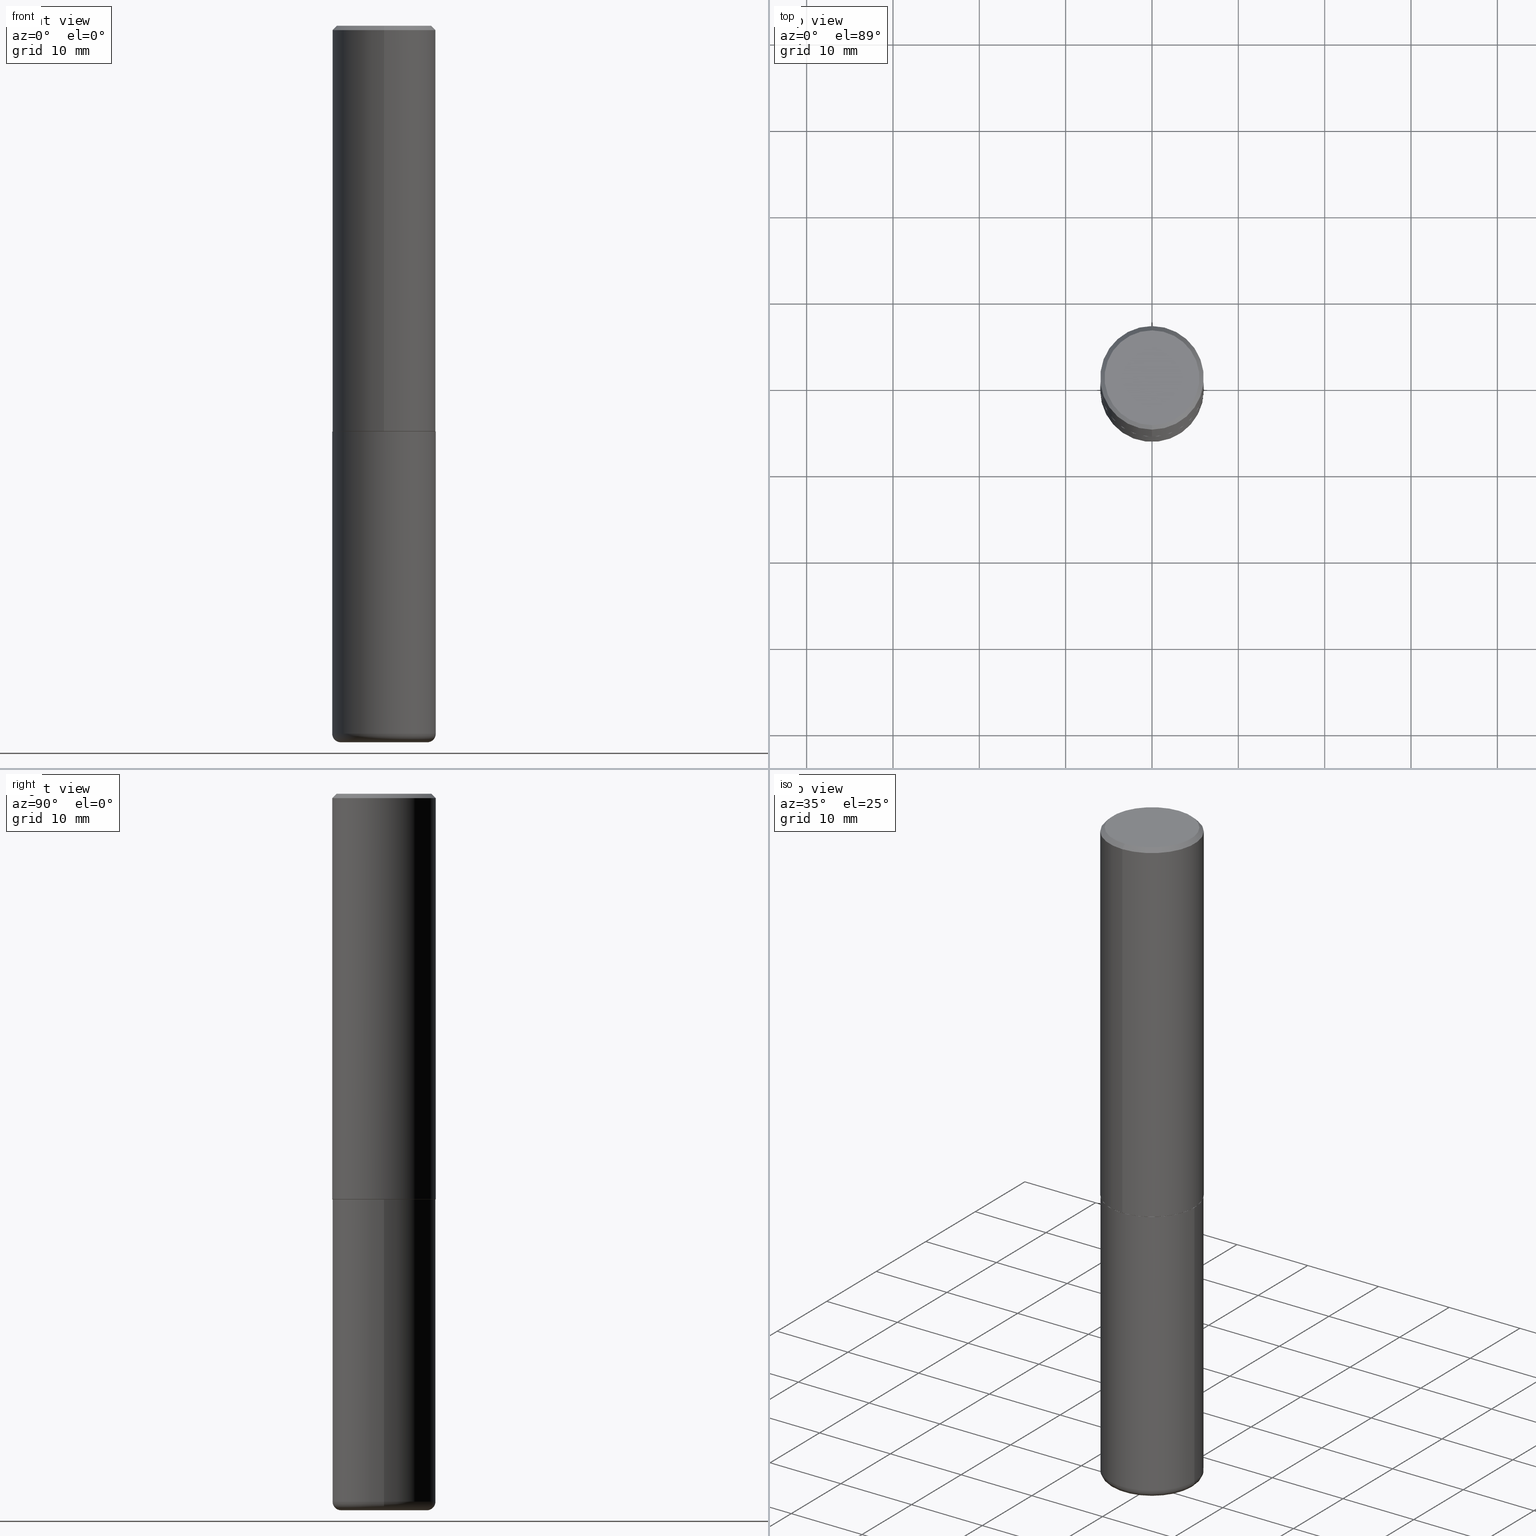
[diagram: canonical four-view strip — front | top / right | iso, engineering-drawing reading convention]
A machine part, canonical four-view strip (front | top / right | iso — engineering-drawing reading convention). The complete STEP part file that produces these views, byte-faithful:
ISO-10303-21;
HEADER;
FILE_DESCRIPTION (( 'STEP AP203' ),
    '1' );
FILE_NAME ('47543.STEP',
    '2024-03-06T09:22:07',
    ( '' ),
    ( '' ),
    'SwSTEP 2.0',
    'SolidWorks 2023',
    '' );
FILE_SCHEMA (( 'CONFIG_CONTROL_DESIGN' ));
ENDSEC;

DATA;
#1 = CIRCLE ( 'NONE', #232, 0.2362000000000002153 ) ;
#2 = PLANE ( 'NONE',  #307 ) ;
#3 = PRODUCT_DEFINITION_SHAPE ( 'NONE', 'NONE',  #387 ) ;
#4 = VECTOR ( 'NONE', #405, 39.37007874015748143 ) ;
#5 = LOCAL_TIME ( 4, 22, 7.000000000000000000, #179 ) ;
#6 = ADVANCED_FACE ( 'NONE', ( #366 ), #299, .T. ) ;
#7 =( LENGTH_UNIT ( ) NAMED_UNIT ( * ) SI_UNIT ( $, .METRE. ) );
#8 = FACE_OUTER_BOUND ( 'NONE', #40, .T. ) ;
#9 = EDGE_LOOP ( 'NONE', ( #396, #248, #272, #295 ) ) ;
#10 = CONICAL_SURFACE ( 'NONE', #94, 0.2351999999999999924, 0.7853981633973801113 ) ;
#11 = ORIENTED_EDGE ( 'NONE', *, *, #398, .T. ) ;
#12 = DIRECTION ( 'NONE',  ( 6.982962677686265922E-15, 1.000000000000000000, -3.491620077334691546E-15 ) ) ;
#13 = PERSON_AND_ORGANIZATION ( #46, #26 ) ;
#14 = CC_DESIGN_DATE_AND_TIME_ASSIGNMENT ( #406, #369, ( #224 ) ) ;
#15 = DIRECTION ( 'NONE',  ( -2.445468806185136597E-29, 3.491481338843145583E-15, 1.000000000000000000 ) ) ;
#16 = COORDINATED_UNIVERSAL_TIME_OFFSET ( 5, 0, .BEHIND. ) ;
#17 = DIRECTION ( 'NONE',  ( -1.000000000000000000, 7.105427357601014480E-15, 0.000000000000000000 ) ) ;
#18 = PLANE ( 'NONE',  #166 ) ;
#19 = LINE ( 'NONE', #145, #381 ) ;
#20 = AXIS2_PLACEMENT_3D ( 'NONE', #347, #221, #187 ) ;
#21 = CIRCLE ( 'NONE', #242, 0.2361999999999999933 ) ;
#22 = AXIS2_PLACEMENT_3D ( 'NONE', #125, #254, #352 ) ;
#23 = EDGE_CURVE ( 'NONE', #267, #38, #112, .T. ) ;
#24 = CARTESIAN_POINT ( 'NONE',  ( 1.579546157692632438E-15, 0.2161999999999996425, -4.261828037201549199E-16 ) ) ;
#25 = DIRECTION ( 'NONE',  ( 1.000000000000000000, -6.982962677686266711E-15, 4.876176775795936353E-29 ) ) ;
#26 = ORGANIZATION ( 'UNSPECIFIED', 'UNSPECIFIED', '' ) ;
#27 = PLANE ( 'NONE',  #77 ) ;
#28 = EDGE_CURVE ( 'NONE', #48, #158, #82, .T. ) ;
#29 = DIRECTION ( 'NONE',  ( -2.445371925614294233E-29, 3.491620077334691546E-15, 1.000000000000000000 ) ) ;
#30 = DIRECTION ( 'NONE',  ( -1.000000000000000000, 6.982962677686265922E-15, -4.876176775795935793E-29 ) ) ;
#31 = ORIENTED_EDGE ( 'NONE', *, *, #160, .F. ) ;
#32 = CONICAL_SURFACE ( 'NONE', #263, 0.2351999999999999924, 0.7853981633973801113 ) ;
#33 = CARTESIAN_POINT ( 'NONE',  ( -1.642392821791764560E-15, -0.2352000000000064595, -1.850399999999999823 ) ) ;
#34 = EDGE_CURVE ( 'NONE', #137, #158, #21, .T. ) ;
#35 = DIRECTION ( 'NONE',  ( 0.000000000000000000, 0.000000000000000000, 1.000000000000000000 ) ) ;
#36 = AXIS2_PLACEMENT_3D ( 'NONE', #350, #314, #159 ) ;
#37 = ADVANCED_FACE ( 'NONE', ( #8 ), #18, .F. ) ;
#38 = VERTEX_POINT ( 'NONE', #150 ) ;
#39 = CALENDAR_DATE ( 2024, 6, 3 ) ;
#40 = EDGE_LOOP ( 'NONE', ( #49, #302 ) ) ;
#41 = DIRECTION ( 'NONE',  ( -6.982962677686265922E-15, -1.000000000000000000, 3.487819265831411744E-15 ) ) ;
#42 = PERSON_AND_ORGANIZATION ( #46, #26 ) ;
#43 = CC_DESIGN_PERSON_AND_ORGANIZATION_ASSIGNMENT ( #151, #177, ( #123 ) ) ;
#44 = CONICAL_SURFACE ( 'NONE', #127, 0.2361999999999999933, 0.7853981633974479459 ) ;
#45 = DATE_AND_TIME ( #324, #372 ) ;
#46 = PERSON ( 'UNSPECIFIED', 'UNSPECIFIED', 'UNSPECIFIED', ('UNSPECIFIED'), ('UNSPECIFIED'), ('UNSPECIFIED') ) ;
#47 = LINE ( 'NONE', #304, #184 ) ;
#48 = VERTEX_POINT ( 'NONE', #274 ) ;
#49 = ORIENTED_EDGE ( 'NONE', *, *, #120, .T. ) ;
#50 = CARTESIAN_POINT ( 'NONE',  ( 7.894706947007477118E-29, -1.127154920618732880E-14, -3.228299999999999947 ) ) ;
#51 = MANIFOLD_SOLID_BREP ( 'Body-Move/Copy2[2]', #360 ) ;
#52 = LINE ( 'NONE', #407, #255 ) ;
#53 = AXIS2_PLACEMENT_3D ( 'NONE', #368, #15, #260 ) ;
#54 = ADVANCED_FACE ( 'NONE', ( #243 ), #142, .T. ) ;
#55 = CYLINDRICAL_SURFACE ( 'NONE', #117, 0.2361999999999999933 ) ;
#56 = DIRECTION ( 'NONE',  ( 1.000000000000000000, -6.982962677686269077E-15, 0.000000000000000000 ) ) ;
#57 = LINE ( 'NONE', #185, #321 ) ;
#58 = CARTESIAN_POINT ( 'NONE',  ( 7.894706947007477118E-29, -1.127154920618732880E-14, -3.228299999999999947 ) ) ;
#59 = ADVANCED_FACE ( 'NONE', ( #374 ), #359, .T. ) ;
#60 = ORIENTED_EDGE ( 'NONE', *, *, #288, .F. ) ;
#61 = DIRECTION ( 'NONE',  ( 1.000000000000000000, -6.982962677686270655E-15, 4.883557194083114583E-29 ) ) ;
#62 = DIRECTION ( 'NONE',  ( -2.445468806185136597E-29, 3.491481338843145583E-15, 1.000000000000000000 ) ) ;
#63 = APPROVAL_PERSON_ORGANIZATION ( #400, #186, #234 ) ;
#64 = CARTESIAN_POINT ( 'NONE',  ( 0.000000000000000000, 0.000000000000000000, 0.000000000000000000 ) ) ;
#65 = CC_DESIGN_SECURITY_CLASSIFICATION ( #224, ( #244 ) ) ;
#66 = ORIENTED_EDGE ( 'NONE', *, *, #204, .T. ) ;
#67 = DIRECTION ( 'NONE',  ( 2.438088387897960049E-29, -3.491481338843145188E-15, -1.000000000000000000 ) ) ;
#68 = CARTESIAN_POINT ( 'NONE',  ( 7.894706947007477118E-29, -1.127154920618732880E-14, -3.228299999999999947 ) ) ;
#69 = DIRECTION ( 'NONE',  ( -2.445371925614294233E-29, 3.491620077334691546E-15, 1.000000000000000000 ) ) ;
#70 = ORIENTED_EDGE ( 'NONE', *, *, #320, .F. ) ;
#71 = AXIS2_PLACEMENT_3D ( 'NONE', #180, #300, #17 ) ;
#72 = EDGE_CURVE ( 'NONE', #165, #269, #289, .T. ) ;
#73 = DIRECTION ( 'NONE',  ( -6.982962677686265133E-15, -1.000000000000000000, 3.469747663417773847E-15 ) ) ;
#74 = DIMENSIONAL_EXPONENTS ( 1.000000000000000000, 0.000000000000000000, 0.000000000000000000, 0.000000000000000000, 0.000000000000000000, 0.000000000000000000, 0.000000000000000000 ) ;
#75 = EDGE_LOOP ( 'NONE', ( #312, #11 ) ) ;
#76 = CIRCLE ( 'NONE', #227, 0.2361999999999999933 ) ;
#77 = AXIS2_PLACEMENT_3D ( 'NONE', #416, #67, #30 ) ;
#78 = ORIENTED_EDGE ( 'NONE', *, *, #364, .T. ) ;
#79 = APPLICATION_PROTOCOL_DEFINITION ( 'international standard', 'config_control_design', 1994, #353 ) ;
#80 = DIRECTION ( 'NONE',  ( -6.982962677686265133E-15, -1.000000000000000000, 3.484499991918703113E-15 ) ) ;
#81 = ORIENTED_EDGE ( 'NONE', *, *, #220, .F. ) ;
#82 = LINE ( 'NONE', #291, #174 ) ;
#83 = APPROVAL_ROLE ( '' ) ;
#84 = DIRECTION ( 'NONE',  ( -2.445468806185136597E-29, 3.491481338843145583E-15, 1.000000000000000000 ) ) ;
#85 = CARTESIAN_POINT ( 'NONE',  ( 7.991058417971171713E-29, -1.140911357093774644E-14, -3.267700000000000049 ) ) ;
#86 = APPROVAL_ROLE ( '' ) ;
#87 = CARTESIAN_POINT ( 'NONE',  ( -0.2361999999999999933, -7.187791195925986796E-15, -1.850400000000000267 ) ) ;
#88 = CIRCLE ( 'NONE', #176, 0.2161999999999996425 ) ;
#89 = DIRECTION ( 'NONE',  ( -2.445468806185136877E-29, 3.491481338843145188E-15, 1.000000000000000000 ) ) ;
#90 = CARTESIAN_POINT ( 'NONE',  ( -0.1968000000000000027, -9.802006365641922115E-15, -3.267700000000000049 ) ) ;
#91 = CARTESIAN_POINT ( 'NONE',  ( -1.551844647095918761E-15, -0.2161999999999996425, 1.083593717719362934E-15 ) ) ;
#92 = EDGE_CURVE ( 'NONE', #265, #182, #178, .T. ) ;
#93 = ORIENTED_EDGE ( 'NONE', *, *, #398, .F. ) ;
#94 = AXIS2_PLACEMENT_3D ( 'NONE', #413, #273, #80 ) ;
#95 = CC_DESIGN_PERSON_AND_ORGANIZATION_ASSIGNMENT ( #113, #395, ( #224 ) ) ;
#96 = APPROVAL_PERSON_ORGANIZATION ( #42, #197, #86 ) ;
#97 = DESIGN_CONTEXT ( 'detailed design', #353, 'design' ) ;
#98 = ADVANCED_FACE ( 'NONE', ( #215 ), #408, .T. ) ;
#99 = DIRECTION ( 'NONE',  ( -2.445371925614293953E-29, 3.491620077334691546E-15, 1.000000000000000000 ) ) ;
#100 = EDGE_CURVE ( 'NONE', #399, #267, #379, .T. ) ;
#101 = ORIENTED_EDGE ( 'NONE', *, *, #383, .F. ) ;
#102 = DIRECTION ( 'NONE',  ( -2.445371925614294233E-29, 3.491620077334691546E-15, 1.000000000000000000 ) ) ;
#103 = LENGTH_MEASURE_WITH_UNIT ( LENGTH_MEASURE( 0.02539999999999999897 ), #7 );
#104 = ADVANCED_FACE ( 'NONE', ( #183 ), #152, .T. ) ;
#105 = AXIS2_PLACEMENT_3D ( 'NONE', #412, #121, #344 ) ;
#106 = CARTESIAN_POINT ( 'NONE',  ( 4.524916211156691287E-29, -6.460893791100115503E-15, -1.850400000000000489 ) ) ;
#107 = CIRCLE ( 'NONE', #71, 0.03940000000000005997 ) ;
#108 = PERSON_AND_ORGANIZATION ( #46, #26 ) ;
#109 = ORIENTED_EDGE ( 'NONE', *, *, #320, .T. ) ;
#110 = CALENDAR_DATE ( 2024, 6, 3 ) ;
#111 = DIRECTION ( 'NONE',  ( -2.445371925614294233E-29, 3.491620077334691546E-15, 1.000000000000000000 ) ) ;
#112 = LINE ( 'NONE', #236, #4 ) ;
#113 = PERSON_AND_ORGANIZATION ( #46, #26 ) ;
#114 = ORIENTED_EDGE ( 'NONE', *, *, #28, .T. ) ;
#115 = CARTESIAN_POINT ( 'NONE',  ( 4.890743851228601113E-31, -6.983240154669400497E-17, -0.02000000000000005246 ) ) ;
#116 = CARTESIAN_POINT ( 'NONE',  ( 0.2362000000000000210, -1.292092499065682375E-14, -3.228299999999999947 ) ) ;
#117 = AXIS2_PLACEMENT_3D ( 'NONE', #64, #156, #25 ) ;
#118 = DIRECTION ( 'NONE',  ( -6.982962677686265922E-15, -1.000000000000000000, 3.491620077334691941E-15 ) ) ;
#119 = APPROVAL_DATE_TIME ( #45, #414 ) ;
#120 = EDGE_CURVE ( 'NONE', #283, #222, #285, .T. ) ;
#121 = DIRECTION ( 'NONE',  ( -2.445371925614294233E-29, 3.491620077334691546E-15, 1.000000000000000000 ) ) ;
#122 = ADVANCED_FACE ( 'NONE', ( #218 ), #55, .T. ) ;
#123 = PRODUCT ( '47543', '47543', '', ( #308 ) ) ;
#124 = DIRECTION ( 'NONE',  ( -2.445468806185136597E-29, 3.491481338843145583E-15, 1.000000000000000000 ) ) ;
#125 = CARTESIAN_POINT ( 'NONE',  ( 4.522470839231075964E-29, -6.457402171022779437E-15, -1.849400000000000155 ) ) ;
#126 = AXIS2_PLACEMENT_3D ( 'NONE', #50, #279, #61 ) ;
#127 = AXIS2_PLACEMENT_3D ( 'NONE', #318, #357, #287 ) ;
#128 = DIRECTION ( 'NONE',  ( 1.000000000000000000, -6.982962677686265133E-15, 0.000000000000000000 ) ) ;
#129 = ORIENTED_EDGE ( 'NONE', *, *, #23, .F. ) ;
#130 = CARTESIAN_POINT ( 'NONE',  ( 4.524916211156691287E-29, -6.460893791100115503E-15, -1.850400000000000489 ) ) ;
#131 = EDGE_CURVE ( 'NONE', #283, #137, #57, .T. ) ;
#132 = ORIENTED_EDGE ( 'NONE', *, *, #380, .F. ) ;
#133 = AXIS2_PLACEMENT_3D ( 'NONE', #245, #277, #376 ) ;
#134 = CARTESIAN_POINT ( 'NONE',  ( 0.000000000000000000, 0.000000000000000000, 0.000000000000000000 ) ) ;
#135 = DIRECTION ( 'NONE',  ( 2.445371925614293953E-29, -3.491620077334691546E-15, -1.000000000000000000 ) ) ;
#136 = VERTEX_POINT ( 'NONE', #251 ) ;
#137 = VERTEX_POINT ( 'NONE', #223 ) ;
#138 = CIRCLE ( 'NONE', #250, 0.1968000000000000027 ) ;
#139 = PERSON_AND_ORGANIZATION ( #46, #26 ) ;
#140 = ADVANCED_FACE ( 'NONE', ( #310 ), #32, .T. ) ;
#141 = ORIENTED_EDGE ( 'NONE', *, *, #418, .F. ) ;
#142 = CYLINDRICAL_SURFACE ( 'NONE', #262, 0.2362000000000001043 ) ;
#143 = DATE_AND_TIME ( #392, #167 ) ;
#144 = ORIENTED_EDGE ( 'NONE', *, *, #72, .F. ) ;
#145 = CARTESIAN_POINT ( 'NONE',  ( 0.2361999999999999933, -1.649375784469496131E-15, 1.151752954443000088E-29 ) ) ;
#146 = CARTESIAN_POINT ( 'NONE',  ( -0.2361999999999999933, 1.678301941865356591E-15, -1.161852468318208757E-29 ) ) ;
#147 = ORIENTED_EDGE ( 'NONE', *, *, #131, .T. ) ;
#148 = CARTESIAN_POINT ( 'NONE',  ( 1.674749228186601644E-15, 0.2351999999999935531, -1.850400000000001377 ) ) ;
#149 = ORIENTED_EDGE ( 'NONE', *, *, #220, .T. ) ;
#150 = CARTESIAN_POINT ( 'NONE',  ( 1.678301941865380454E-15, 0.2361999999999937760, -1.849400000000001043 ) ) ;
#151 = PERSON_AND_ORGANIZATION ( #46, #26 ) ;
#152 = TOROIDAL_SURFACE ( 'NONE', #20, 0.1968000000000000027, 0.03940000000000005997 ) ;
#153 = CARTESIAN_POINT ( 'NONE',  ( 7.991058417971171713E-29, -1.140911357093774644E-14, -3.267700000000000049 ) ) ;
#154 = CARTESIAN_POINT ( 'NONE',  ( -1.620449627073635079E-15, -0.2362000000000000766, -0.01999999999999922673 ) ) ;
#155 = ORIENTED_EDGE ( 'NONE', *, *, #418, .T. ) ;
#156 = DIRECTION ( 'NONE',  ( -2.445468806185136597E-29, 3.491481338843145583E-15, 1.000000000000000000 ) ) ;
#157 = ADVANCED_FACE ( 'NONE', ( #284 ), #10, .T. ) ;
#158 = VERTEX_POINT ( 'NONE', #154 ) ;
#159 = DIRECTION ( 'NONE',  ( 6.982962677686265922E-15, 1.000000000000000000, -3.487819265831411744E-15 ) ) ;
#160 = EDGE_CURVE ( 'NONE', #267, #399, #311, .T. ) ;
#161 = AXIS2_PLACEMENT_3D ( 'NONE', #343, #62, #56 ) ;
#162 = FACE_OUTER_BOUND ( 'NONE', #365, .T. ) ;
#163 = EDGE_CURVE ( 'NONE', #399, #48, #397, .T. ) ;
#164 = CC_DESIGN_PERSON_AND_ORGANIZATION_ASSIGNMENT ( #340, #261, ( #387 ) ) ;
#165 = VERTEX_POINT ( 'NONE', #371 ) ;
#166 = AXIS2_PLACEMENT_3D ( 'NONE', #175, #135, #12 ) ;
#167 = LOCAL_TIME ( 4, 22, 7.000000000000000000, #171 ) ;
#168 = ORIENTED_EDGE ( 'NONE', *, *, #163, .T. ) ;
#169 = VERTEX_POINT ( 'NONE', #116 ) ;
#170 = EDGE_LOOP ( 'NONE', ( #391, #403, #214, #402 ) ) ;
#171 = COORDINATED_UNIVERSAL_TIME_OFFSET ( 5, 0, .BEHIND. ) ;
#172 = DIRECTION ( 'NONE',  ( -2.445371925614294233E-29, 3.491620077334691546E-15, 1.000000000000000000 ) ) ;
#173 = ORIENTED_EDGE ( 'NONE', *, *, #196, .T. ) ;
#174 = VECTOR ( 'NONE', #326, 39.37007874015748143 ) ;
#175 = CARTESIAN_POINT ( 'NONE',  ( 1.509716530915768154E-15, 0.2161999999999996425, -5.905355322199570835E-16 ) ) ;
#176 = AXIS2_PLACEMENT_3D ( 'NONE', #386, #69, #202 ) ;
#177 = PERSON_AND_ORGANIZATION_ROLE ( 'design_owner' ) ;
#178 = LINE ( 'NONE', #146, #305 ) ;
#179 = COORDINATED_UNIVERSAL_TIME_OFFSET ( 5, 0, .BEHIND. ) ;
#180 = CARTESIAN_POINT ( 'NONE',  ( -0.1968000000000000027, -9.873201102211451027E-15, -3.228299999999999947 ) ) ;
#181 = EDGE_CURVE ( 'NONE', #38, #137, #47, .T. ) ;
#182 = VERTEX_POINT ( 'NONE', #87 ) ;
#183 = FACE_OUTER_BOUND ( 'NONE', #301, .T. ) ;
#184 = VECTOR ( 'NONE', #111, 39.37007874015748143 ) ;
#185 = CARTESIAN_POINT ( 'NONE',  ( 1.649375784469496525E-15, 0.2361999999999999378, -0.02000000000000087472 ) ) ;
#186 = APPROVAL ( #375, 'UNSPECIFIED' ) ;
#187 = DIRECTION ( 'NONE',  ( 1.000000000000000000, -6.982962677686270655E-15, 4.883557194083114583E-29 ) ) ;
#188 = EDGE_LOOP ( 'NONE', ( #144, #322 ) ) ;
#189 = AXIS2_PLACEMENT_3D ( 'NONE', #205, #323, #336 ) ;
#190 = CC_DESIGN_APPROVAL ( #414, ( #387 ) ) ;
#191 = CC_DESIGN_APPROVAL ( #197, ( #224 ) ) ;
#192 = DIRECTION ( 'NONE',  ( 4.937700262164545676E-15, 0.7071067811865447972, -0.7071067811865502373 ) ) ;
#193 = APPLICATION_CONTEXT ( 'configuration controlled 3d designs of mechanical parts and assemblies' ) ;
#194 = CIRCLE ( 'NONE', #22, 0.2362000000000002153 ) ;
#195 = DIRECTION ( 'NONE',  ( 1.000000000000000000, -6.982962677686265133E-15, 0.000000000000000000 ) ) ;
#196 = EDGE_CURVE ( 'NONE', #222, #158, #52, .T. ) ;
#197 = APPROVAL ( #237, 'UNSPECIFIED' ) ;
#198 =( CONVERSION_BASED_UNIT ( 'INCH', #103 ) LENGTH_UNIT ( ) NAMED_UNIT ( #74 ) );
#199 = AXIS2_PLACEMENT_3D ( 'NONE', #106, #346, #282 ) ;
#200 = CIRCLE ( 'NONE', #133, 0.03940000000000005997 ) ;
#201 = EDGE_LOOP ( 'NONE', ( #129, #208, #168, #141 ) ) ;
#202 = DIRECTION ( 'NONE',  ( -6.982962677686265922E-15, -1.000000000000000000, 3.491620077334691152E-15 ) ) ;
#203 = ORIENTED_EDGE ( 'NONE', *, *, #181, .F. ) ;
#204 = EDGE_CURVE ( 'NONE', #269, #165, #138, .T. ) ;
#205 = CARTESIAN_POINT ( 'NONE',  ( 0.000000000000000000, 0.000000000000000000, 0.000000000000000000 ) ) ;
#206 = COORDINATED_UNIVERSAL_TIME_OFFSET ( 5, 0, .BEHIND. ) ;
#207 = DIRECTION ( 'NONE',  ( -6.982962677686265133E-15, -1.000000000000000000, 3.484499991918703113E-15 ) ) ;
#208 = ORIENTED_EDGE ( 'NONE', *, *, #160, .T. ) ;
#209 = SHAPE_DEFINITION_REPRESENTATION ( #3, #229 ) ;
#210 = DIRECTION ( 'NONE',  ( 1.000000000000000000, -6.982962677686271444E-15, 0.000000000000000000 ) ) ;
#211 = DIRECTION ( 'NONE',  ( -2.445468806185136597E-29, 3.491481338843145583E-15, 1.000000000000000000 ) ) ;
#212 = CALENDAR_DATE ( 2024, 6, 3 ) ;
#213 = DIRECTION ( 'NONE',  ( -2.445468806185136877E-29, 3.491481338843145188E-15, 1.000000000000000000 ) ) ;
#214 = ORIENTED_EDGE ( 'NONE', *, *, #356, .F. ) ;
#215 = FACE_OUTER_BOUND ( 'NONE', #170, .T. ) ;
#216 = FACE_OUTER_BOUND ( 'NONE', #188, .T. ) ;
#217 = CARTESIAN_POINT ( 'NONE',  ( 7.991058417971171713E-29, -1.140911357093774644E-14, -3.267700000000000049 ) ) ;
#218 = FACE_OUTER_BOUND ( 'NONE', #334, .T. ) ;
#219 = AXIS2_PLACEMENT_3D ( 'NONE', #58, #124, #128 ) ;
#220 = EDGE_CURVE ( 'NONE', #169, #136, #19, .T. ) ;
#221 = DIRECTION ( 'NONE',  ( -2.445468806185136597E-29, 3.491481338843145583E-15, 1.000000000000000000 ) ) ;
#222 = VERTEX_POINT ( 'NONE', #91 ) ;
#223 = CARTESIAN_POINT ( 'NONE',  ( 1.649375784469496525E-15, 0.2361999999999999378, -0.02000000000000087472 ) ) ;
#224 = SECURITY_CLASSIFICATION ( '', '', #266 ) ;
#225 = CARTESIAN_POINT ( 'NONE',  ( 4.890743851228601113E-31, -6.983240154669400497E-17, -0.02000000000000005246 ) ) ;
#226 = DIRECTION ( 'NONE',  ( 1.000000000000000000, -6.982962677686269077E-15, 0.000000000000000000 ) ) ;
#227 = AXIS2_PLACEMENT_3D ( 'NONE', #316, #390, #226 ) ;
#228 =( NAMED_UNIT ( * ) PLANE_ANGLE_UNIT ( ) SI_UNIT ( $, .RADIAN. ) );
#229 = ADVANCED_BREP_SHAPE_REPRESENTATION ( '47543', ( #330, #51, #388 ), #286 ) ;
#230 = EDGE_CURVE ( 'NONE', #269, #265, #107, .T. ) ;
#231 = CLOSED_SHELL ( 'NONE', ( #122, #98, #351, #59, #104, #276 ) ) ;
#232 = AXIS2_PLACEMENT_3D ( 'NONE', #256, #102, #73 ) ;
#233 = DIRECTION ( 'NONE',  ( -2.445371925614294233E-29, 3.491620077334691546E-15, 1.000000000000000000 ) ) ;
#234 = APPROVAL_ROLE ( '' ) ;
#235 = DIRECTION ( 'NONE',  ( -6.982962677686265133E-15, -1.000000000000000000, 3.484499991918703113E-15 ) ) ;
#236 = CARTESIAN_POINT ( 'NONE',  ( 1.671196514507800548E-15, 0.2351999999999935531, -1.850400000000001377 ) ) ;
#237 = APPROVAL_STATUS ( 'not_yet_approved' ) ;
#238 = DIRECTION ( 'NONE',  ( -4.851104656540961908E-15, -0.7071067811865496822, -0.7071067811865453523 ) ) ;
#239 = CC_DESIGN_PERSON_AND_ORGANIZATION_ASSIGNMENT ( #108, #294, ( #244 ) ) ;
#240 = DIRECTION ( 'NONE',  ( -2.445371925614294233E-29, 3.491620077334691546E-15, 1.000000000000000000 ) ) ;
#241 = APPROVAL_STATUS ( 'not_yet_approved' ) ;
#242 = AXIS2_PLACEMENT_3D ( 'NONE', #115, #233, #41 ) ;
#243 = FACE_OUTER_BOUND ( 'NONE', #293, .T. ) ;
#244 = PRODUCT_DEFINITION_FORMATION_WITH_SPECIFIED_SOURCE ( 'ANY', '', #123, .NOT_KNOWN. ) ;
#245 = CARTESIAN_POINT ( 'NONE',  ( 0.1968000000000000027, -1.264579626115598374E-14, -3.228299999999999947 ) ) ;
#246 = ORIENTED_EDGE ( 'NONE', *, *, #92, .F. ) ;
#247 = COORDINATED_UNIVERSAL_TIME_OFFSET ( 5, 0, .BEHIND. ) ;
#248 = ORIENTED_EDGE ( 'NONE', *, *, #23, .T. ) ;
#249 = ORIENTED_EDGE ( 'NONE', *, *, #100, .F. ) ;
#250 = AXIS2_PLACEMENT_3D ( 'NONE', #153, #84, #210 ) ;
#251 = CARTESIAN_POINT ( 'NONE',  ( 0.2361999999999999933, -8.110012853864854101E-15, -1.850400000000000267 ) ) ;
#252 = FACE_OUTER_BOUND ( 'NONE', #292, .T. ) ;
#253 = EDGE_LOOP ( 'NONE', ( #246, #298, #149, #93 ) ) ;
#254 = DIRECTION ( 'NONE',  ( -2.445371925614294233E-29, 3.491620077334691546E-15, 1.000000000000000000 ) ) ;
#255 = VECTOR ( 'NONE', #238, 39.37007874015748143 ) ;
#256 = CARTESIAN_POINT ( 'NONE',  ( 4.522470839231075964E-29, -6.457402171022779437E-15, -1.849400000000000155 ) ) ;
#257 = FACE_OUTER_BOUND ( 'NONE', #370, .T. ) ;
#258 = APPROVAL_PERSON_ORGANIZATION ( #139, #414, #83 ) ;
#259 = DIRECTION ( 'NONE',  ( -6.982962677686265922E-15, -1.000000000000000000, 3.491620077334691546E-15 ) ) ;
#260 = DIRECTION ( 'NONE',  ( 1.000000000000000000, -6.982962677686266711E-15, 4.876176775795936353E-29 ) ) ;
#261 = PERSON_AND_ORGANIZATION_ROLE ( 'creator' ) ;
#262 = AXIS2_PLACEMENT_3D ( 'NONE', #410, #240, #118 ) ;
#263 = AXIS2_PLACEMENT_3D ( 'NONE', #313, #29, #235 ) ;
#264 = ORIENTED_EDGE ( 'NONE', *, *, #230, .F. ) ;
#265 = VERTEX_POINT ( 'NONE', #338 ) ;
#266 = SECURITY_CLASSIFICATION_LEVEL ( 'unclassified' ) ;
#267 = VERTEX_POINT ( 'NONE', #148 ) ;
#268 = EDGE_CURVE ( 'NONE', #165, #169, #200, .T. ) ;
#269 = VERTEX_POINT ( 'NONE', #90 ) ;
#270 = PERSON_AND_ORGANIZATION_ROLE ( 'creator' ) ;
#271 = DIRECTION ( 'NONE',  ( -4.937700262164211199E-15, -0.7071067811864968355, 0.7071067811865981989 ) ) ;
#272 = ORIENTED_EDGE ( 'NONE', *, *, #364, .F. ) ;
#273 = DIRECTION ( 'NONE',  ( -2.445371925614294233E-29, 3.491620077334691546E-15, 1.000000000000000000 ) ) ;
#274 = CARTESIAN_POINT ( 'NONE',  ( -1.649375784469452349E-15, -0.2362000000000066546, -1.849399999999999489 ) ) ;
#275 = LOCAL_TIME ( 4, 22, 7.000000000000000000, #247 ) ;
#276 = ADVANCED_FACE ( 'NONE', ( #216 ), #411, .T. ) ;
#277 = DIRECTION ( 'NONE',  ( -6.982962677686266711E-15, -1.000000000000000000, 3.491481338843145583E-15 ) ) ;
#278 = ORIENTED_EDGE ( 'NONE', *, *, #356, .T. ) ;
#279 = DIRECTION ( 'NONE',  ( -2.445468806185136597E-29, 3.491481338843145583E-15, 1.000000000000000000 ) ) ;
#280 = DIRECTION ( 'NONE',  ( -1.000000000000000000, 6.982962677686265922E-15, -4.876176775795935793E-29 ) ) ;
#281 = VECTOR ( 'NONE', #271, 39.37007874015748143 ) ;
#282 = DIRECTION ( 'NONE',  ( -6.982962677686265133E-15, -1.000000000000000000, 3.484499991918703113E-15 ) ) ;
#283 = VERTEX_POINT ( 'NONE', #24 ) ;
#284 = FACE_OUTER_BOUND ( 'NONE', #201, .T. ) ;
#285 = CIRCLE ( 'NONE', #105, 0.2161999999999996425 ) ;
#286 =( GEOMETRIC_REPRESENTATION_CONTEXT ( 3 ) GLOBAL_UNCERTAINTY_ASSIGNED_CONTEXT ( ( #319 ) ) GLOBAL_UNIT_ASSIGNED_CONTEXT ( ( #198, #228, #355 ) ) REPRESENTATION_CONTEXT ( 'NONE', 'WORKASPACE' ) );
#287 = DIRECTION ( 'NONE',  ( 6.982962677686265922E-15, 1.000000000000000000, -3.487819265831411744E-15 ) ) ;
#288 = EDGE_CURVE ( 'NONE', #136, #182, #306, .T. ) ;
#289 = CIRCLE ( 'NONE', #348, 0.1968000000000000027 ) ;
#290 = CIRCLE ( 'NONE', #219, 0.2361999999999999933 ) ;
#291 = CARTESIAN_POINT ( 'NONE',  ( -1.649375784469496722E-15, -0.2362000000000001043, 8.247206622664545710E-16 ) ) ;
#292 = EDGE_LOOP ( 'NONE', ( #101, #173, #109, #377 ) ) ;
#293 = EDGE_LOOP ( 'NONE', ( #78, #394, #70, #362 ) ) ;
#294 = PERSON_AND_ORGANIZATION_ROLE ( 'design_supplier' ) ;
#295 = ORIENTED_EDGE ( 'NONE', *, *, #163, .F. ) ;
#296 = CIRCLE ( 'NONE', #317, 0.2361999999999999933 ) ;
#297 = DATE_TIME_ROLE ( 'creation_date' ) ;
#298 = ORIENTED_EDGE ( 'NONE', *, *, #380, .T. ) ;
#299 = CYLINDRICAL_SURFACE ( 'NONE', #189, 0.2362000000000001043 ) ;
#300 = DIRECTION ( 'NONE',  ( 7.105427357601001859E-15, 1.000000000000000000, -3.491481338843145583E-15 ) ) ;
#301 = EDGE_LOOP ( 'NONE', ( #264, #66, #333, #132 ) ) ;
#302 = ORIENTED_EDGE ( 'NONE', *, *, #383, .T. ) ;
#303 = ORIENTED_EDGE ( 'NONE', *, *, #34, .F. ) ;
#304 = CARTESIAN_POINT ( 'NONE',  ( 1.678301941865357183E-15, 0.2362000000000001043, -8.247206622664545710E-16 ) ) ;
#305 = VECTOR ( 'NONE', #89, 39.37007874015748143 ) ;
#306 = CIRCLE ( 'NONE', #161, 0.2361999999999999933 ) ;
#307 = AXIS2_PLACEMENT_3D ( 'NONE', #130, #99, #259 ) ;
#308 = MECHANICAL_CONTEXT ( 'NONE', #193, 'mechanical' ) ;
#309 = CC_DESIGN_PERSON_AND_ORGANIZATION_ASSIGNMENT ( #13, #270, ( #244 ) ) ;
#310 = FACE_OUTER_BOUND ( 'NONE', #9, .T. ) ;
#311 = CIRCLE ( 'NONE', #415, 0.2351999999999999924 ) ;
#312 = ORIENTED_EDGE ( 'NONE', *, *, #288, .T. ) ;
#313 = CARTESIAN_POINT ( 'NONE',  ( 4.524916211156691287E-29, -6.460893791100115503E-15, -1.850400000000000489 ) ) ;
#314 = DIRECTION ( 'NONE',  ( 2.445371925614294233E-29, -3.491620077334691546E-15, -1.000000000000000000 ) ) ;
#315 = DIRECTION ( 'NONE',  ( -2.445468806185136597E-29, 3.491481338843145583E-15, 1.000000000000000000 ) ) ;
#316 = CARTESIAN_POINT ( 'NONE',  ( 4.525095478964977394E-29, -6.460637069395357576E-15, -1.850400000000000267 ) ) ;
#317 = AXIS2_PLACEMENT_3D ( 'NONE', #68, #315, #195 ) ;
#318 = CARTESIAN_POINT ( 'NONE',  ( 4.890743851228601113E-31, -6.983240154669400497E-17, -0.02000000000000005246 ) ) ;
#319 = UNCERTAINTY_MEASURE_WITH_UNIT (LENGTH_MEASURE( 1.000000000000000082E-05 ), #198, 'distance_accuracy_value', 'NONE');
#320 = EDGE_CURVE ( 'NONE', #158, #137, #354, .T. ) ;
#321 = VECTOR ( 'NONE', #192, 39.37007874015748143 ) ;
#322 = ORIENTED_EDGE ( 'NONE', *, *, #204, .F. ) ;
#323 = DIRECTION ( 'NONE',  ( -2.445371925614294233E-29, 3.491620077334691546E-15, 1.000000000000000000 ) ) ;
#324 = CALENDAR_DATE ( 2024, 6, 3 ) ;
#325 = ORIENTED_EDGE ( 'NONE', *, *, #34, .T. ) ;
#326 = DIRECTION ( 'NONE',  ( -2.445371925614294233E-29, 3.491620077334691546E-15, 1.000000000000000000 ) ) ;
#327 = DATE_AND_TIME ( #39, #5 ) ;
#328 = CC_DESIGN_DATE_AND_TIME_ASSIGNMENT ( #327, #297, ( #387 ) ) ;
#329 = CARTESIAN_POINT ( 'NONE',  ( -1.642392821791764560E-15, -0.2352000000000064595, -1.850399999999999823 ) ) ;
#330 = MANIFOLD_SOLID_BREP ( 'Body-Move/Copy2[1]', #231 ) ;
#331 = DIRECTION ( 'NONE',  ( 1.000000000000000000, -6.982962677686271444E-15, 0.000000000000000000 ) ) ;
#332 = DIRECTION ( 'NONE',  ( 1.000000000000000000, 0.000000000000000000, 0.000000000000000000 ) ) ;
#333 = ORIENTED_EDGE ( 'NONE', *, *, #268, .T. ) ;
#334 = EDGE_LOOP ( 'NONE', ( #278, #335, #60, #81 ) ) ;
#335 = ORIENTED_EDGE ( 'NONE', *, *, #92, .T. ) ;
#336 = DIRECTION ( 'NONE',  ( -6.982962677686265922E-15, -1.000000000000000000, 3.491620077334691941E-15 ) ) ;
#337 = EDGE_LOOP ( 'NONE', ( #203, #155, #114, #303 ) ) ;
#338 = CARTESIAN_POINT ( 'NONE',  ( -0.2362000000000000210, -9.593247264321970832E-15, -3.228299999999999947 ) ) ;
#339 = ORIENTED_EDGE ( 'NONE', *, *, #196, .F. ) ;
#340 = PERSON_AND_ORGANIZATION ( #46, #26 ) ;
#341 = DIRECTION ( 'NONE',  ( 2.438088387897960049E-29, -3.491481338843145188E-15, -1.000000000000000000 ) ) ;
#342 = AXIS2_PLACEMENT_3D ( 'NONE', #217, #341, #280 ) ;
#343 = CARTESIAN_POINT ( 'NONE',  ( 4.525095478964977394E-29, -6.460637069395357576E-15, -1.850400000000000267 ) ) ;
#344 = DIRECTION ( 'NONE',  ( -6.982962677686265922E-15, -1.000000000000000000, 3.491620077334691152E-15 ) ) ;
#345 = FACE_OUTER_BOUND ( 'NONE', #75, .T. ) ;
#346 = DIRECTION ( 'NONE',  ( -2.445371925614294233E-29, 3.491620077334691546E-15, 1.000000000000000000 ) ) ;
#347 = CARTESIAN_POINT ( 'NONE',  ( 7.894706947007477118E-29, -1.127154920618732880E-14, -3.228299999999999947 ) ) ;
#348 = AXIS2_PLACEMENT_3D ( 'NONE', #85, #211, #331 ) ;
#349 = CONICAL_SURFACE ( 'NONE', #36, 0.2361999999999999933, 0.7853981633974479459 ) ;
#350 = CARTESIAN_POINT ( 'NONE',  ( 4.890743851228601113E-31, -6.983240154669400497E-17, -0.02000000000000005246 ) ) ;
#351 = ADVANCED_FACE ( 'NONE', ( #345 ), #27, .F. ) ;
#352 = DIRECTION ( 'NONE',  ( -6.982962677686265133E-15, -1.000000000000000000, 3.469747663417773847E-15 ) ) ;
#353 = APPLICATION_CONTEXT ( 'configuration controlled 3d designs of mechanical parts and assemblies' ) ;
#354 = CIRCLE ( 'NONE', #393, 0.2361999999999999933 ) ;
#355 =( NAMED_UNIT ( * ) SI_UNIT ( $, .STERADIAN. ) SOLID_ANGLE_UNIT ( ) );
#356 = EDGE_CURVE ( 'NONE', #169, #265, #290, .T. ) ;
#357 = DIRECTION ( 'NONE',  ( 2.445371925614294233E-29, -3.491620077334691546E-15, -1.000000000000000000 ) ) ;
#358 = PRODUCT_RELATED_PRODUCT_CATEGORY ( 'detail', '', ( #123 ) ) ;
#359 = CYLINDRICAL_SURFACE ( 'NONE', #53, 0.2361999999999999933 ) ;
#360 = CLOSED_SHELL ( 'NONE', ( #140, #54, #361, #404, #6, #157, #384, #37 ) ) ;
#361 = ADVANCED_FACE ( 'NONE', ( #252 ), #349, .T. ) ;
#362 = ORIENTED_EDGE ( 'NONE', *, *, #28, .F. ) ;
#363 = APPROVAL_DATE_TIME ( #143, #186 ) ;
#364 = EDGE_CURVE ( 'NONE', #48, #38, #194, .T. ) ;
#365 = EDGE_LOOP ( 'NONE', ( #339, #385, #147, #325 ) ) ;
#366 = FACE_OUTER_BOUND ( 'NONE', #337, .T. ) ;
#367 = APPROVAL_DATE_TIME ( #378, #197 ) ;
#368 = CARTESIAN_POINT ( 'NONE',  ( 0.000000000000000000, 0.000000000000000000, 0.000000000000000000 ) ) ;
#369 = DATE_TIME_ROLE ( 'classification_date' ) ;
#370 = EDGE_LOOP ( 'NONE', ( #249, #31 ) ) ;
#371 = CARTESIAN_POINT ( 'NONE',  ( 0.1968000000000000027, -1.278336062590640454E-14, -3.267700000000000049 ) ) ;
#372 = LOCAL_TIME ( 4, 22, 7.000000000000000000, #206 ) ;
#373 = LOCAL_TIME ( 4, 22, 7.000000000000000000, #16 ) ;
#374 = FACE_OUTER_BOUND ( 'NONE', #253, .T. ) ;
#375 = APPROVAL_STATUS ( 'not_yet_approved' ) ;
#376 = DIRECTION ( 'NONE',  ( 1.000000000000000000, -6.982962677686267499E-15, 0.000000000000000000 ) ) ;
#377 = ORIENTED_EDGE ( 'NONE', *, *, #131, .F. ) ;
#378 = DATE_AND_TIME ( #212, #373 ) ;
#379 = CIRCLE ( 'NONE', #199, 0.2351999999999999924 ) ;
#380 = EDGE_CURVE ( 'NONE', #265, #169, #296, .T. ) ;
#381 = VECTOR ( 'NONE', #213, 39.37007874015748143 ) ;
#382 = DIRECTION ( 'NONE',  ( -2.445371925614294233E-29, 3.491620077334691546E-15, 1.000000000000000000 ) ) ;
#383 = EDGE_CURVE ( 'NONE', #222, #283, #88, .T. ) ;
#384 = ADVANCED_FACE ( 'NONE', ( #257 ), #2, .F. ) ;
#385 = ORIENTED_EDGE ( 'NONE', *, *, #120, .F. ) ;
#386 = CARTESIAN_POINT ( 'NONE',  ( -8.038070963430480451E-45, 1.147714573189292330E-30, 3.287054569996039822E-16 ) ) ;
#387 = PRODUCT_DEFINITION ( 'UNKNOWN', '', #244, #97 ) ;
#388 = AXIS2_PLACEMENT_3D ( 'NONE', #134, #35, #332 ) ;
#389 = APPLICATION_PROTOCOL_DEFINITION ( 'international standard', 'config_control_design', 1994, #193 ) ;
#390 = DIRECTION ( 'NONE',  ( -2.445468806185136597E-29, 3.491481338843145583E-15, 1.000000000000000000 ) ) ;
#391 = ORIENTED_EDGE ( 'NONE', *, *, #72, .T. ) ;
#392 = CALENDAR_DATE ( 2024, 6, 3 ) ;
#393 = AXIS2_PLACEMENT_3D ( 'NONE', #225, #382, #417 ) ;
#394 = ORIENTED_EDGE ( 'NONE', *, *, #181, .T. ) ;
#395 = PERSON_AND_ORGANIZATION_ROLE ( 'classification_officer' ) ;
#396 = ORIENTED_EDGE ( 'NONE', *, *, #100, .T. ) ;
#397 = LINE ( 'NONE', #329, #281 ) ;
#398 = EDGE_CURVE ( 'NONE', #182, #136, #76, .T. ) ;
#399 = VERTEX_POINT ( 'NONE', #33 ) ;
#400 = PERSON_AND_ORGANIZATION ( #46, #26 ) ;
#401 = CARTESIAN_POINT ( 'NONE',  ( 4.524916211156691287E-29, -6.460893791100115503E-15, -1.850400000000000489 ) ) ;
#402 = ORIENTED_EDGE ( 'NONE', *, *, #268, .F. ) ;
#403 = ORIENTED_EDGE ( 'NONE', *, *, #230, .T. ) ;
#404 = ADVANCED_FACE ( 'NONE', ( #162 ), #44, .T. ) ;
#405 = DIRECTION ( 'NONE',  ( 5.024295867787719235E-15, 0.7071067811865017205, 0.7071067811865933139 ) ) ;
#406 = DATE_AND_TIME ( #110, #275 ) ;
#407 = CARTESIAN_POINT ( 'NONE',  ( -1.620449627073635079E-15, -0.2362000000000000766, -0.01999999999999922673 ) ) ;
#408 = TOROIDAL_SURFACE ( 'NONE', #126, 0.1968000000000000027, 0.03940000000000005997 ) ;
#409 = CC_DESIGN_APPROVAL ( #186, ( #244 ) ) ;
#410 = CARTESIAN_POINT ( 'NONE',  ( 0.000000000000000000, 0.000000000000000000, 0.000000000000000000 ) ) ;
#411 = PLANE ( 'NONE',  #342 ) ;
#412 = CARTESIAN_POINT ( 'NONE',  ( -8.038070963430480451E-45, 1.147714573189292330E-30, 3.287054569996039822E-16 ) ) ;
#413 = CARTESIAN_POINT ( 'NONE',  ( 4.524916211156691287E-29, -6.460893791100115503E-15, -1.850400000000000489 ) ) ;
#414 = APPROVAL ( #241, 'UNSPECIFIED' ) ;
#415 = AXIS2_PLACEMENT_3D ( 'NONE', #401, #172, #207 ) ;
#416 = CARTESIAN_POINT ( 'NONE',  ( 4.525095478964977394E-29, -6.460637069395357576E-15, -1.850400000000000267 ) ) ;
#417 = DIRECTION ( 'NONE',  ( -6.982962677686265922E-15, -1.000000000000000000, 3.487819265831411744E-15 ) ) ;
#418 = EDGE_CURVE ( 'NONE', #38, #48, #1, .T. ) ;
ENDSEC;
END-ISO-10303-21;
